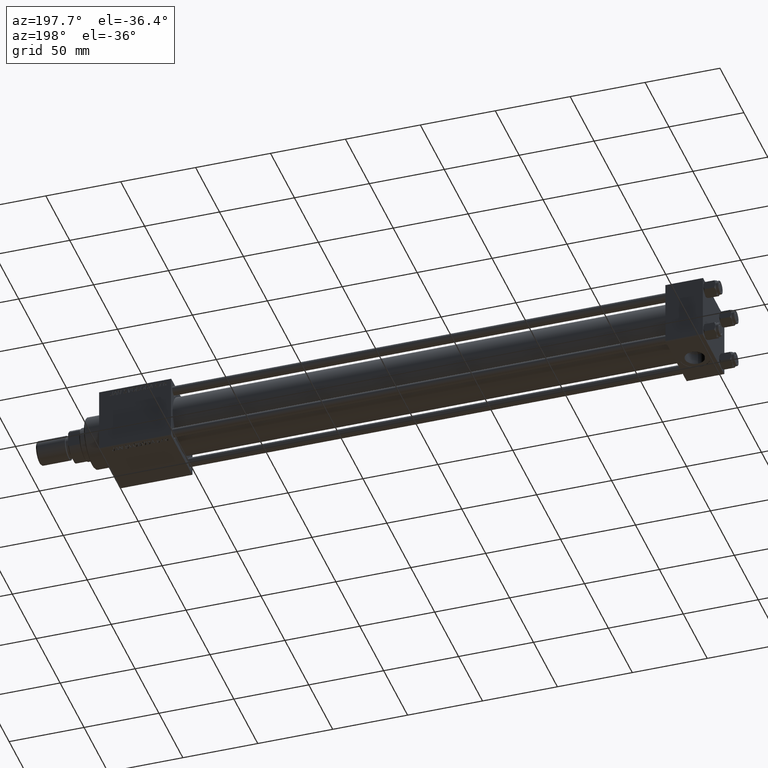
[diagram: clean part render]
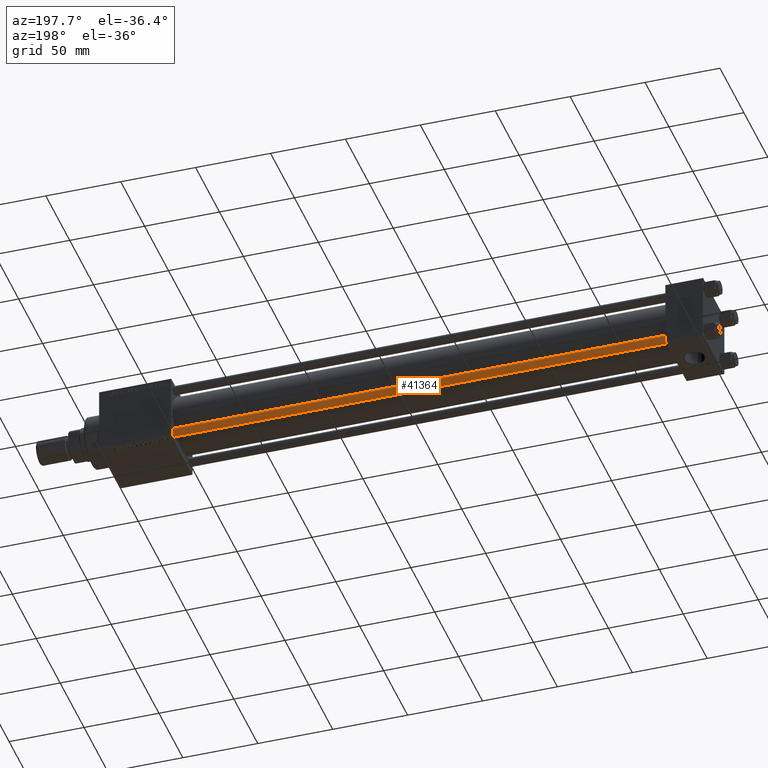
[diagram: same view with one face highlighted and labeled with its STEP entity id]
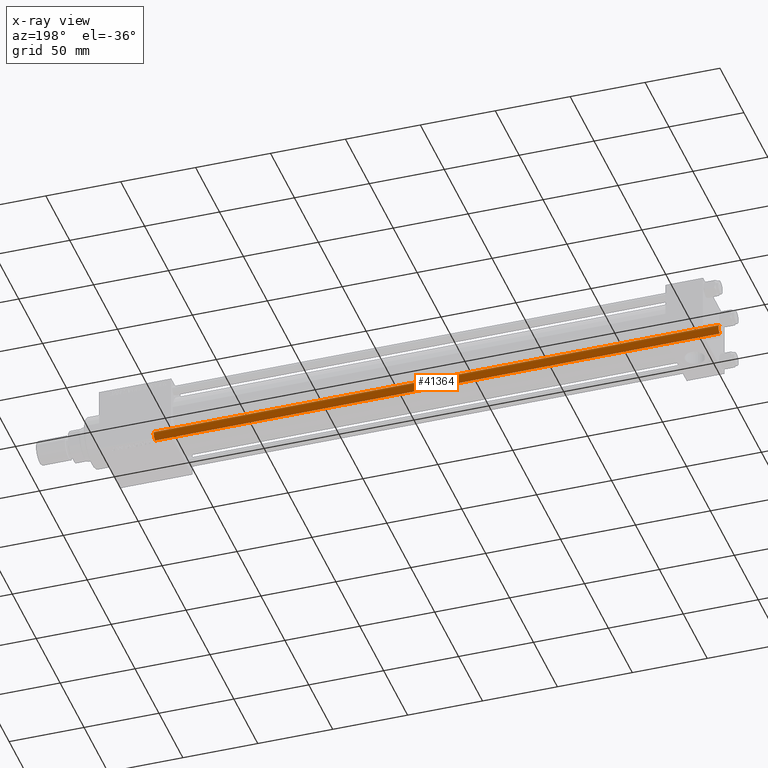
[diagram: x-ray of the same camera — body ghosted, the highlighted face saturated]
A machine part, auxiliary view. The second image highlights one B-rep face of the part: STEP entity #41364.
The next image is the same camera in x-ray: the body ghosted, the highlighted face saturated — about 0% of this face is hidden behind the body in this view.
In plain terms, the highlighted cylindrical surface (edge-blend (fillet) strip) has radius 3 mm, axis along (1, -0, 0).
Its self-contained STEP definition (entity closure, byte-faithful):
#78 = DIRECTION ( 'NONE',  ( 1.000000000000000000, 0.000000000000000000, 0.000000000000000000 ) ) ;
#336 = CARTESIAN_POINT ( 'NONE',  ( 0.000000000000000000, 0.000000000000000000, 377.5000000000000000 ) ) ;
#2432 = LINE ( 'NONE', #19683, #34533 ) ;
#4179 = CARTESIAN_POINT ( 'NONE',  ( -3.000000000000000444, 0.000000000000000000, 0.5000000000000004441 ) ) ;
#6797 = VERTEX_POINT ( 'NONE', #49465 ) ;
#8321 = DIRECTION ( 'NONE',  ( -0.000000000000000000, -0.000000000000000000, -1.000000000000000000 ) ) ;
#9278 = AXIS2_PLACEMENT_3D ( 'NONE', #336, #32730, #78 ) ;
#11853 = CIRCLE ( 'NONE', #41547, 3.000000000000000444 ) ;
#14357 = ORIENTED_EDGE ( 'NONE', *, *, #29780, .F. ) ;
#15937 = VERTEX_POINT ( 'NONE', #48302 ) ;
#16688 = CARTESIAN_POINT ( 'NONE',  ( 0.000000000000000000, 0.000000000000000000, 0.5000000000000004441 ) ) ;
#19246 = VERTEX_POINT ( 'NONE', #4179 ) ;
#19683 = CARTESIAN_POINT ( 'NONE',  ( -3.000000000000000444, 0.000000000000000000, 378.0000000000000000 ) ) ;
#21977 = CYLINDRICAL_SURFACE ( 'NONE', #46658, 3.000000000000000444 ) ;
#22505 = FACE_OUTER_BOUND ( 'NONE', #25581, .T. ) ;
#23391 = DIRECTION ( 'NONE',  ( -0.000000000000000000, -0.000000000000000000, -1.000000000000000000 ) ) ;
#25581 = EDGE_LOOP ( 'NONE', ( #41160, #49301, #31573, #14357 ) ) ;
#25960 = DIRECTION ( 'NONE',  ( -0.000000000000000000, -0.000000000000000000, -1.000000000000000000 ) ) ;
#27168 = VERTEX_POINT ( 'NONE', #45949 ) ;
#28245 = CARTESIAN_POINT ( 'NONE',  ( 3.000000000000000444, 3.673940397442060361E-16, 378.0000000000000000 ) ) ;
#29676 = DIRECTION ( 'NONE',  ( -1.000000000000000000, 0.000000000000000000, 0.000000000000000000 ) ) ;
#29780 = EDGE_CURVE ( 'NONE', #27168, #19246, #2432, .T. ) ;
#29944 = CARTESIAN_POINT ( 'NONE',  ( 0.000000000000000000, 0.000000000000000000, 378.0000000000000000 ) ) ;
#31573 = ORIENTED_EDGE ( 'NONE', *, *, #40253, .T. ) ;
#32355 = DIRECTION ( 'NONE',  ( -0.000000000000000000, -0.000000000000000000, 1.000000000000000000 ) ) ;
#32730 = DIRECTION ( 'NONE',  ( 0.000000000000000000, 0.000000000000000000, -1.000000000000000000 ) ) ;
#33006 = CIRCLE ( 'NONE', #9278, 3.000000000000000444 ) ;
#34533 = VECTOR ( 'NONE', #23391, 1000.000000000000000 ) ;
#34794 = VECTOR ( 'NONE', #8321, 1000.000000000000000 ) ;
#35441 = EDGE_CURVE ( 'NONE', #27168, #6797, #33006, .T. ) ;
#36870 = DIRECTION ( 'NONE',  ( 1.000000000000000000, 0.000000000000000000, 0.000000000000000000 ) ) ;
#40253 = EDGE_CURVE ( 'NONE', #15937, #19246, #11853, .T. ) ;
#40901 = EDGE_CURVE ( 'NONE', #6797, #15937, #48168, .T. ) ;
#41160 = ORIENTED_EDGE ( 'NONE', *, *, #35441, .T. ) ;
#41364 = ADVANCED_FACE ( 'NONE', ( #22505 ), #21977, .T. ) ;
#41547 = AXIS2_PLACEMENT_3D ( 'NONE', #16688, #32355, #36870 ) ;
#45949 = CARTESIAN_POINT ( 'NONE',  ( -3.000000000000000444, 0.000000000000000000, 377.5000000000000000 ) ) ;
#46658 = AXIS2_PLACEMENT_3D ( 'NONE', #29944, #25960, #29676 ) ;
#48168 = LINE ( 'NONE', #28245, #34794 ) ;
#48302 = CARTESIAN_POINT ( 'NONE',  ( 3.000000000000000444, 3.673940397442060361E-16, 0.5000000000000004441 ) ) ;
#49301 = ORIENTED_EDGE ( 'NONE', *, *, #40901, .T. ) ;
#49465 = CARTESIAN_POINT ( 'NONE',  ( 3.000000000000000444, 3.673940397442060361E-16, 377.5000000000000000 ) ) ;